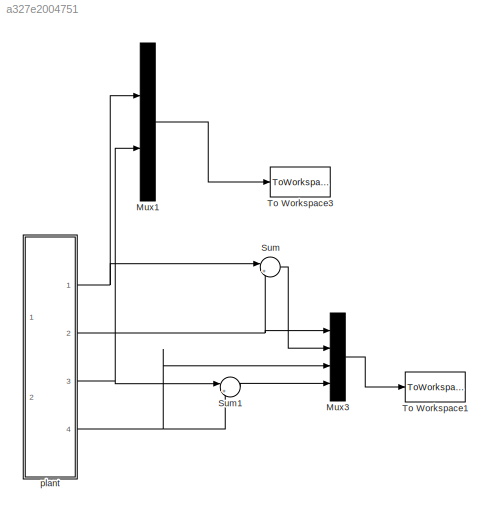
MODEL slx_a327e2004751
KIND model
CONFIG AbsTol = auto
CONFIG EnableMultiTasking = off
CONFIG FixedStep = auto
CONFIG MaxStep = auto
CONFIG MinStep = auto
CONFIG RelTol = 1e-3
CONFIG SampleTimeConstraint = Unconstrained
CONFIG Solver = VariableStepAuto
CONFIG SolverName = VariableStepAuto
CONFIG StartTime = 0.0
CONFIG StopTime = 2
BLOCK [Mux] Mux1
  DisplayOption = bar
  Inputs = 2
  Ports = [2, 1]
BLOCK [Mux] Mux3
  DisplayOption = bar
  Ports = [4, 1]
BLOCK [Sum] Sum
  IconShape = round
  InputSameDT = off
  Inputs = |++
  OutDataTypeStr = Inherit: Inherit via internal rule
  Ports = [2, 1]
  SaturateOnIntegerOverflow = off
BLOCK [Sum] Sum1
  IconShape = round
  InputSameDT = off
  Inputs = |++
  OutDataTypeStr = Inherit: Inherit via internal rule
  Ports = [2, 1]
  SaturateOnIntegerOverflow = off
BLOCK [ToWorkspace] To Workspace1
  FixptAsFi = on
  MaxDataPoints = inf
  Ports = [1]
  SampleTime = -1
  Save2DSignal = 2-D array (concatenate along first dimension)
  VariableName = q
BLOCK [ToWorkspace] To Workspace3
  FixptAsFi = on
  MaxDataPoints = inf
  Ports = [1]
  SampleTime = -1
  Save2DSignal = 2-D array (concatenate along first dimension)
  VariableName = Q
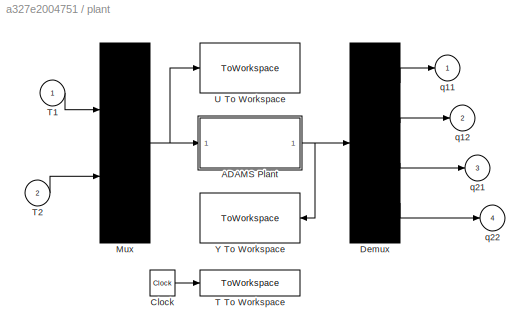
BLOCK [SubSystem] plant
  Ports = [2, 4]
  RequestExecContextInheritance = off
  ShowPortLabels = none
  Variant = off
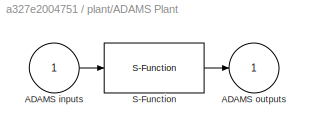
BLOCK [SubSystem] plant/ADAMS Plant
  InitFcn = clear mex
  LoadFcn = %check based on dialog box setting for when setting by popup menu                                             \nif exist('ADAMS_solver_type')                                                                                 \n  if strcmp(ADAMS_solver_type,'C++')                                                                          \n    set_param(gcb,'exetyp','C++');                                 ...<+3488ch>
  OpenFcn = open_system(gcb,'mask')                                                                                                                          \nif not(exist('set_some_params_states'))                                                                                                          \n                                                                                                            ...<+625ch>
  Ports = [1, 1]
  RequestExecContextInheritance = off
  Variant = off
BLOCK [Inport] plant/ADAMS Plant/ADAMS inputs
  IconDisplay = Port number
BLOCK [Outport] plant/ADAMS Plant/ADAMS outputs
  IconDisplay = Port number
  InitialOutput = 0
BLOCK [S-Function] plant/ADAMS Plant/S-Function
  EnableBusSupport = off
  FunctionName = adams_plant
  Parameters = exevie,exesol,stat,outfil,nampre,o_rate,nam_in,namout,dft,modsim,modani,dt_out,inicmd,exetyp,comtyp,ada_host, workdir,pin_interp_order,pout_extrap_order,pin_extrap_order,pout_interp_order,simulink_lead_cosim
  Ports = [1, 1]
  SFcnIsStateOwnerBlock = off
  SFunctionDeploymentMode = off
  StopFcn = clear mex
BLOCK [Clock] plant/Clock
BLOCK [Demux] plant/Demux
  Ports = [1, 4]
BLOCK [Mux] plant/Mux
  Inputs = 2
  Ports = [2, 1]
BLOCK [ToWorkspace] plant/T To Workspace
  MaxDataPoints = 100000
  Ports = [1]
  VariableName = ADAMS_tout
BLOCK [Inport] plant/T1
  IconDisplay = Port number
BLOCK [Inport] plant/T2
  IconDisplay = Port number
  Port = 2
BLOCK [ToWorkspace] plant/U To Workspace
  MaxDataPoints = 100000
  Ports = [1]
  VariableName = ADAMS_uout
BLOCK [ToWorkspace] plant/Y To Workspace
  MaxDataPoints = 100000
  Ports = [1]
  VariableName = ADAMS_yout
BLOCK [Outport] plant/q11
  IconDisplay = Port number
BLOCK [Outport] plant/q12
  IconDisplay = Port number
  Port = 2
BLOCK [Outport] plant/q21
  IconDisplay = Port number
  Port = 3
BLOCK [Outport] plant/q22
  IconDisplay = Port number
  Port = 4
LINE Mux1:1 -> To Workspace3:1
LINE Mux3:1 -> To Workspace1:1
LINE Sum1:1 -> Mux3:4
LINE Sum:1 -> Mux3:2
LINE plant/ADAMS Plant/ADAMS inputs:1 -> plant/ADAMS Plant/S-Function:1
LINE plant/ADAMS Plant/S-Function:1 -> plant/ADAMS Plant/ADAMS outputs:1
NET plant/ADAMS Plant:1 -> plant/Demux:1, plant/Y To Workspace:1
LINE plant/Clock:1 -> plant/T To Workspace:1
LINE plant/Demux:1 -> plant/q11:1
LINE plant/Demux:2 -> plant/q12:1
LINE plant/Demux:3 -> plant/q21:1
LINE plant/Demux:4 -> plant/q22:1
NET plant/Mux:1 -> plant/ADAMS Plant:1, plant/U To Workspace:1
LINE plant/T1:1 -> plant/Mux:1
LINE plant/T2:1 -> plant/Mux:2
NET plant:1 -> Mux1:1, Sum:1
NET plant:2 -> Mux3:1, Sum:2
NET plant:3 -> Mux1:2, Sum1:1
NET plant:4 -> Mux3:3, Sum1:2
note: NET lines group one-source signal fan-out (src -> all destinations, sorted); 1:1 wires keep LINE
